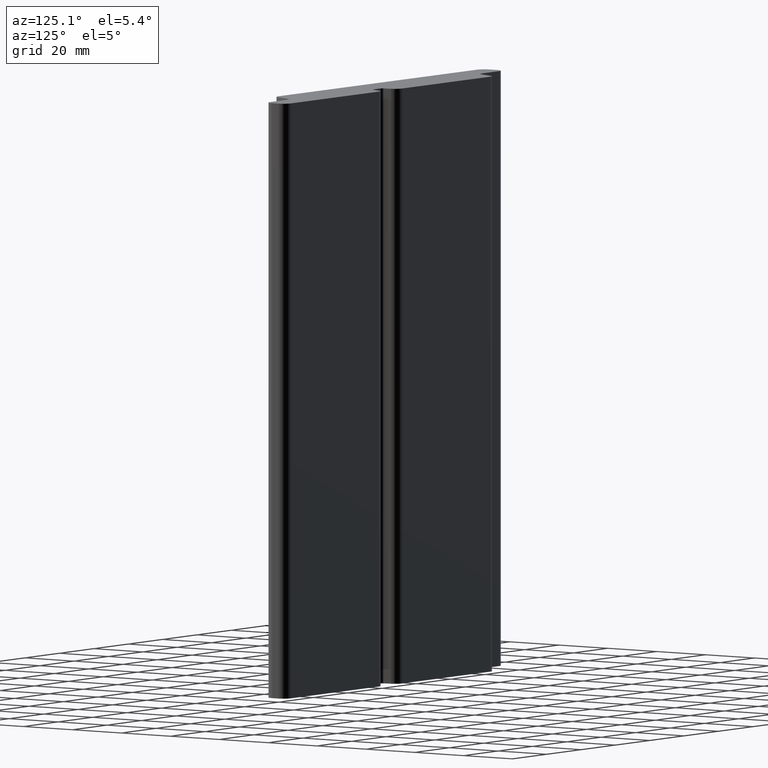
[diagram: clean part render]
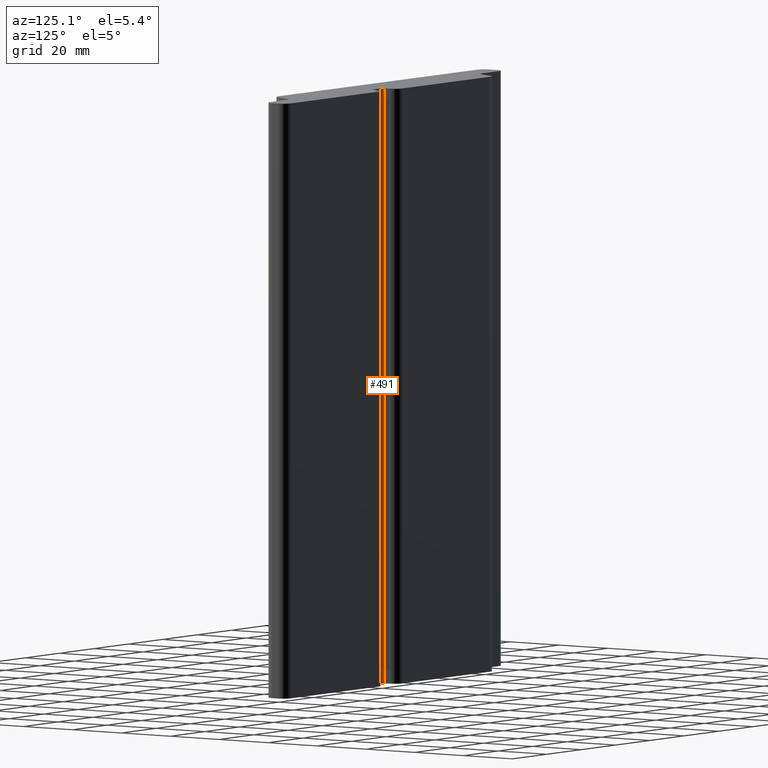
[diagram: same view with one face highlighted and labeled with its STEP entity id]
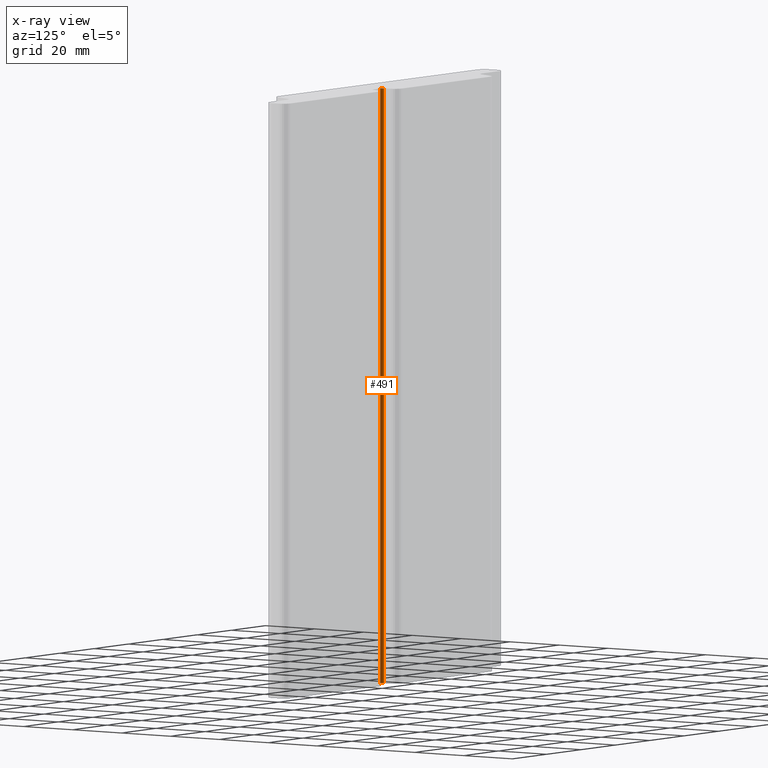
[diagram: x-ray of the same camera — body ghosted, the highlighted face saturated]
A machine part, auxiliary view. The second image highlights one B-rep face of the part: STEP entity #491.
The next image is the same camera in x-ray: the body ghosted, the highlighted face saturated — about 0% of this face is hidden behind the body in this view.
In plain terms, the highlighted cylindrical surface (edge-blend (fillet) strip) has radius 1 mm, axis along (0, 0, 1).
Its self-contained STEP definition (entity closure, byte-faithful):
#43=FACE_OUTER_BOUND('',#69,.T.);
#69=EDGE_LOOP('',(#377,#378,#379,#380));
#109=LINE('',#804,#157);
#110=LINE('',#810,#158);
#157=VECTOR('',#653,10.);
#158=VECTOR('',#660,10.);
#191=CIRCLE('',#546,0.999998447068466);
#192=CIRCLE('',#547,0.999998447068466);
#229=VERTEX_POINT('',#800);
#230=VERTEX_POINT('',#802);
#231=VERTEX_POINT('',#806);
#232=VERTEX_POINT('',#808);
#291=EDGE_CURVE('',#229,#230,#109,.T.);
#292=EDGE_CURVE('',#229,#231,#191,.T.);
#293=EDGE_CURVE('',#232,#230,#192,.T.);
#294=EDGE_CURVE('',#231,#232,#110,.T.);
#377=ORIENTED_EDGE('',*,*,#292,.F.);
#378=ORIENTED_EDGE('',*,*,#291,.T.);
#379=ORIENTED_EDGE('',*,*,#293,.F.);
#380=ORIENTED_EDGE('',*,*,#294,.F.);
#472=CYLINDRICAL_SURFACE('',#545,0.999998447068466);
#491=ADVANCED_FACE('',(#43),#472,.F.);
#545=AXIS2_PLACEMENT_3D('',#805,#654,#655);
#546=AXIS2_PLACEMENT_3D('',#807,#656,#657);
#547=AXIS2_PLACEMENT_3D('',#809,#658,#659);
#653=DIRECTION('',(0.,0.,1.));
#654=DIRECTION('center_axis',(0.,0.,1.));
#655=DIRECTION('ref_axis',(-0.990268068741164,-0.139173100962957,0.));
#656=DIRECTION('center_axis',(0.,0.,1.));
#657=DIRECTION('ref_axis',(-0.990268068741164,-0.139173100962957,0.));
#658=DIRECTION('center_axis',(0.,0.,-1.));
#659=DIRECTION('ref_axis',(-0.990268068741164,-0.139173100962957,0.));
#660=DIRECTION('',(0.,0.,1.));
#800=CARTESIAN_POINT('',(-2.99026653093443,12.8608255622897,0.));
#802=CARTESIAN_POINT('',(-2.99026653093443,12.8608255622897,200.));
#804=CARTESIAN_POINT('',(-2.99026653093443,12.8608255622897,0.));
#805=CARTESIAN_POINT('Origin',(-2.00000000001178,12.9999984471264,0.));
#806=CARTESIAN_POINT('',(-2.0000000000102,12.0000000000579,0.));
#807=CARTESIAN_POINT('Origin',(-2.00000000001178,12.9999984471264,0.));
#808=CARTESIAN_POINT('',(-2.0000000000102,12.0000000000579,200.));
#809=CARTESIAN_POINT('Origin',(-2.00000000001178,12.9999984471264,200.));
#810=CARTESIAN_POINT('',(-2.0000000000102,12.0000000000579,0.));